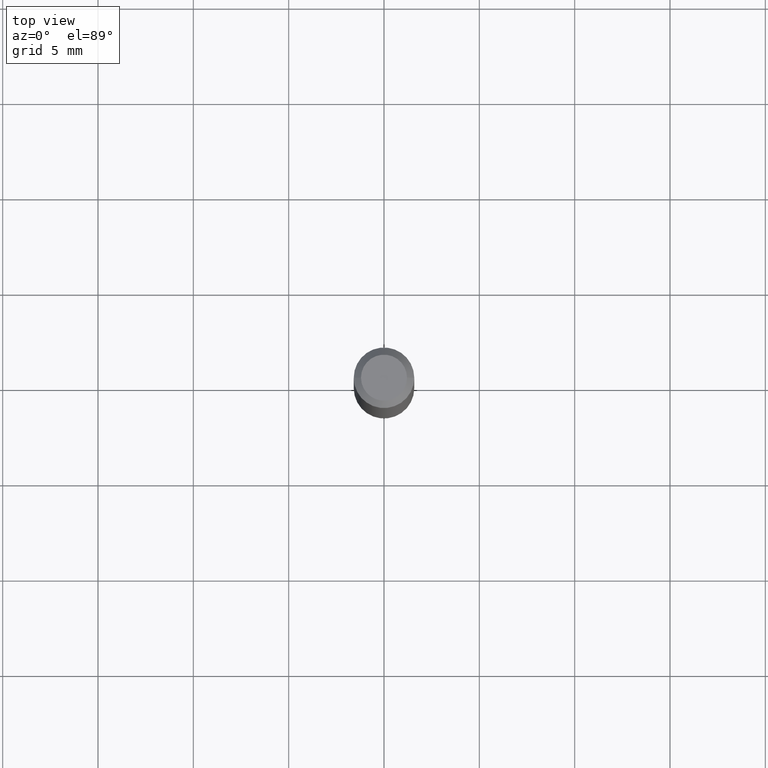
[diagram: clean part render]
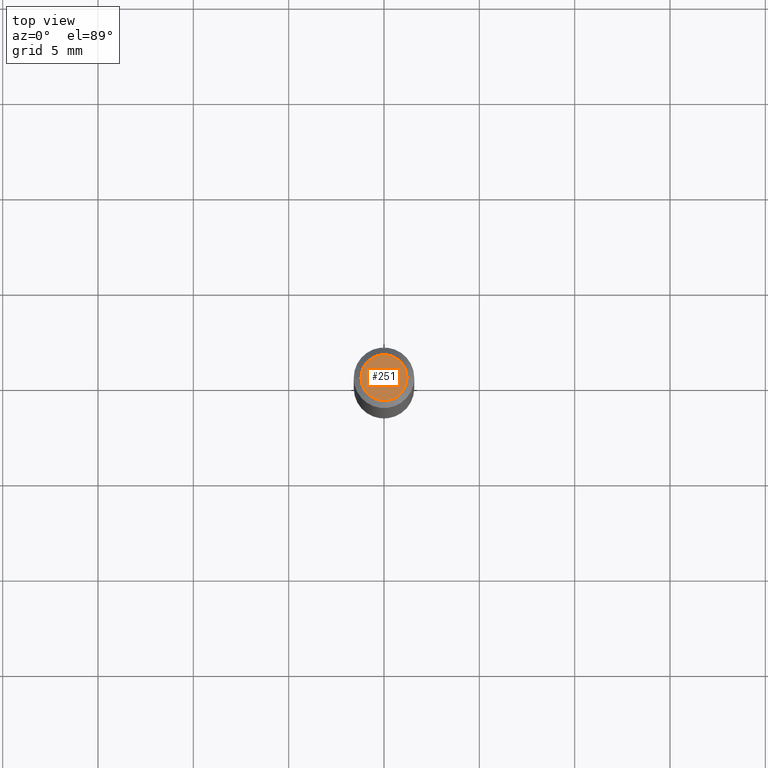
[diagram: same view with one face highlighted and labeled with its STEP entity id]
A machine part, top view. The second image highlights one B-rep face of the part: STEP entity #251.
In plain terms, the highlighted planar face has unit normal (0, -0, -1).
Its self-contained STEP definition (entity closure, byte-faithful):
#29 = CARTESIAN_POINT ( 'NONE',  ( 5.895992206697910099E-45, -8.417914271318620386E-31, -2.410986470890828574E-16 ) ) ;
#42 = CIRCLE ( 'NONE', #133, 0.04749999999999999362 ) ;
#71 = AXIS2_PLACEMENT_3D ( 'NONE', #241, #138, #423 ) ;
#83 = DIRECTION ( 'NONE',  ( -2.445468806185136597E-29, 3.491481338843145583E-15, 1.000000000000000000 ) ) ;
#90 = CARTESIAN_POINT ( 'NONE',  ( -0.04749999999999999362, 3.578768372314206562E-16, -2.410986470890852239E-16 ) ) ;
#107 = CIRCLE ( 'NONE', #332, 0.04749999999999999362 ) ;
#133 = AXIS2_PLACEMENT_3D ( 'NONE', #29, #388, #456 ) ;
#135 = FACE_OUTER_BOUND ( 'NONE', #394, .T. ) ;
#138 = DIRECTION ( 'NONE',  ( 2.438088387897960049E-29, -3.491481338843145188E-15, -1.000000000000000000 ) ) ;
#175 = VERTEX_POINT ( 'NONE', #90 ) ;
#189 = EDGE_CURVE ( 'NONE', #323, #175, #42, .T. ) ;
#213 = CARTESIAN_POINT ( 'NONE',  ( 5.895992206697910099E-45, -8.417914271318620386E-31, -2.410986470890828574E-16 ) ) ;
#221 = ORIENTED_EDGE ( 'NONE', *, *, #286, .T. ) ;
#222 = DIRECTION ( 'NONE',  ( 1.000000000000000000, -6.982962677686267499E-15, 4.852736867747366768E-29 ) ) ;
#241 = CARTESIAN_POINT ( 'NONE',  ( 3.316907271900976096E-16, 0.04749999999999999362, -2.863946871395908498E-16 ) ) ;
#251 = ADVANCED_FACE ( 'NONE', ( #135 ), #278, .F. ) ;
#278 = PLANE ( 'NONE',  #71 ) ;
#286 = EDGE_CURVE ( 'NONE', #175, #323, #107, .T. ) ;
#323 = VERTEX_POINT ( 'NONE', #421 ) ;
#332 = AXIS2_PLACEMENT_3D ( 'NONE', #213, #83, #222 ) ;
#365 = ORIENTED_EDGE ( 'NONE', *, *, #189, .T. ) ;
#388 = DIRECTION ( 'NONE',  ( -2.445468806185136597E-29, 3.491481338843145583E-15, 1.000000000000000000 ) ) ;
#394 = EDGE_LOOP ( 'NONE', ( #221, #365 ) ) ;
#421 = CARTESIAN_POINT ( 'NONE',  ( 0.04749999999999999362, -4.035134999187582567E-16, -2.410986470890802443E-16 ) ) ;
#423 = DIRECTION ( 'NONE',  ( -1.000000000000000000, 6.982962677686265922E-15, -4.876176775795935793E-29 ) ) ;
#456 = DIRECTION ( 'NONE',  ( 1.000000000000000000, -6.982962677686267499E-15, 4.852736867747366768E-29 ) ) ;